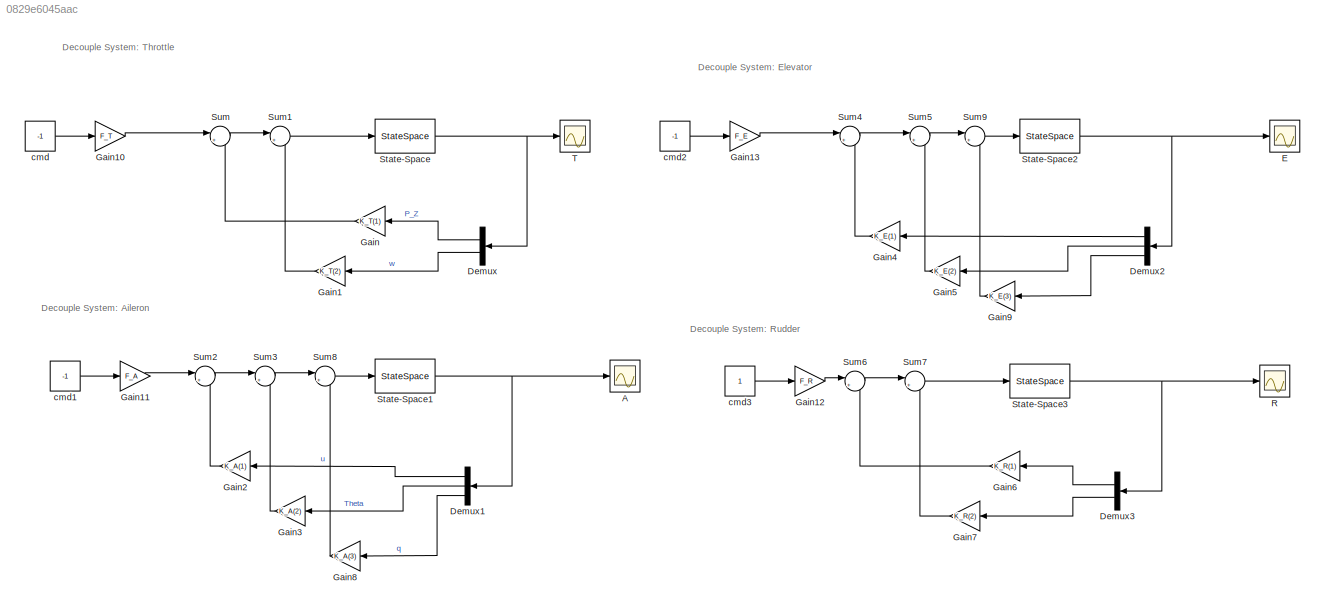
MODEL slx_0829e6045aac
KIND model
CONFIG AbsTol = auto
CONFIG EnableMultiTasking = off
CONFIG FixedStep = auto
CONFIG MaxStep = auto
CONFIG MinStep = auto
CONFIG RelTol = 1e-3
CONFIG SampleTimeConstraint = Unconstrained
CONFIG SolverName = VariableStepAuto
CONFIG StartTime = 0.0
CONFIG StopTime = 10
BLOCK [Scope] A
  Floating = off
  NumInputPorts = 1
  Ports = [1]
  ScopeSpecificationString = Simulink.scopes.TimeScopeBlockCfg('CurrentConfiguration', extmgr.ConfigurationSet(extmgr.Configuration('Core','General UI',true),extmgr.Configuration('Core','Source UI',true),extmgr.Configuration('Sources','WiredSimulink',true,'DataLoggingVariableName','ScopeData1'),extmgr.Configuration('Visuals','Time Domain',true,'SerializedDisplays',{struct('MinYLimReal','-1.15237','MaxYLimReal','0.37247','YLab...<+1461ch>
BLOCK [Demux] Demux
  NameLocation = top
  Outputs = 2
  Ports = [1, 2]
BLOCK [Demux] Demux1
  NameLocation = top
  Outputs = 3
  Ports = [1, 3]
BLOCK [Demux] Demux2
  NameLocation = top
  Outputs = 3
  Ports = [1, 3]
BLOCK [Demux] Demux3
  NameLocation = top
  Outputs = 2
  Ports = [1, 2]
BLOCK [Scope] E
  Floating = off
  NumInputPorts = 1
  Ports = [1]
  ScopeSpecificationString = Simulink.scopes.TimeScopeBlockCfg('CurrentConfiguration', extmgr.ConfigurationSet(extmgr.Configuration('Core','General UI',true),extmgr.Configuration('Core','Source UI',true),extmgr.Configuration('Sources','WiredSimulink',true,'DataLoggingVariableName','ScopeData2'),extmgr.Configuration('Visuals','Time Domain',true,'SerializedDisplays',{struct('MinYLimReal','-1.12488','MaxYLimReal','0.12499','YLab...<+1430ch>
BLOCK [Gain] Gain
  Gain = K_T(1)
  NameLocation = top
BLOCK [Gain] Gain1
  Gain = K_T(2)
  NameLocation = top
BLOCK [Gain] Gain10
  Gain = F_T
BLOCK [Gain] Gain11
  Gain = F_A
BLOCK [Gain] Gain12
  Gain = F_R
BLOCK [Gain] Gain13
  Gain = F_E
BLOCK [Gain] Gain2
  Gain = K_A(1)
  NameLocation = top
BLOCK [Gain] Gain3
  Gain = K_A(2)
  NameLocation = top
BLOCK [Gain] Gain4
  Gain = K_E(1)
  NameLocation = top
BLOCK [Gain] Gain5
  Gain = K_E(2)
  NameLocation = top
BLOCK [Gain] Gain6
  Gain = K_R(1)
  NameLocation = top
BLOCK [Gain] Gain7
  Gain = K_R(2)
  NameLocation = top
BLOCK [Gain] Gain8
  Gain = K_A(3)
  NameLocation = top
BLOCK [Gain] Gain9
  Gain = K_E(3)
  NameLocation = top
BLOCK [Scope] R
  Floating = off
  NumInputPorts = 1
  Ports = [1]
  ScopeSpecificationString = Simulink.scopes.TimeScopeBlockCfg('CurrentConfiguration', extmgr.ConfigurationSet(extmgr.Configuration('Core','General UI',true),extmgr.Configuration('Core','Source UI',true),extmgr.Configuration('Sources','WiredSimulink',true,'DataLoggingVariableName','ScopeData3'),extmgr.Configuration('Visuals','Time Domain',true,'SerializedDisplays',{struct('MinYLimReal','-0.13242','MaxYLimReal','1.19177','YLab...<+1446ch>
BLOCK [StateSpace] State-Space
  A = A_T
  B = B_T
  C = C_T
  D = D_T
  InitialCondition = [0,0]
  ParameterTunability = Unconstrained
  Ports = [1, 1]
BLOCK [StateSpace] State-Space1
  A = A_A
  B = B_A
  C = C_A
  D = D_A
  InitialCondition = [0,0,0]
  Ports = [1, 1]
BLOCK [StateSpace] State-Space2
  A = A_E
  B = B_E
  C = C_E
  D = D_E
  InitialCondition = [0,0,0]
  Ports = [1, 1]
BLOCK [StateSpace] State-Space3
  A = A_R
  B = B_R
  C = C_R
  D = D_R
  InitialCondition = [0,0]
  Ports = [1, 1]
BLOCK [Sum] Sum
  Inputs = |+-
  Ports = [2, 1]
BLOCK [Sum] Sum1
  Inputs = |+-
  Ports = [2, 1]
BLOCK [Sum] Sum2
  Inputs = |+-
  Ports = [2, 1]
BLOCK [Sum] Sum3
  Inputs = |+-
  Ports = [2, 1]
BLOCK [Sum] Sum4
  Inputs = |+-
  Ports = [2, 1]
BLOCK [Sum] Sum5
  Inputs = |+-
  Ports = [2, 1]
BLOCK [Sum] Sum6
  Inputs = |+-
  Ports = [2, 1]
BLOCK [Sum] Sum7
  Inputs = |+-
  Ports = [2, 1]
BLOCK [Sum] Sum8
  Inputs = |+-
  Ports = [2, 1]
BLOCK [Sum] Sum9
  Inputs = |+-
  Ports = [2, 1]
BLOCK [Scope] T
  Floating = off
  NumInputPorts = 1
  Ports = [1]
  ScopeSpecificationString = Simulink.scopes.TimeScopeBlockCfg('CurrentConfiguration', extmgr.ConfigurationSet(extmgr.Configuration('Core','General UI',true),extmgr.Configuration('Core','Source UI',true),extmgr.Configuration('Sources','WiredSimulink',true),extmgr.Configuration('Visuals','Time Domain',true,'SerializedDisplays',{struct('MinYLimReal','-1.2469','MaxYLimReal','0.13854','YLabelReal','','MinYLimMag','0.00000','MaxYL...<+1399ch>
BLOCK [Constant] cmd
  Value = -1
BLOCK [Constant] cmd1
  Value = -1
BLOCK [Constant] cmd2
  Value = -1
BLOCK [Constant] cmd3
ANNOTATION (root): Decouple System: Aileron
ANNOTATION (root): Decouple System: Elevator
ANNOTATION (root): Decouple System: Rudder
ANNOTATION (root): Decouple System: Throttle
LINE Demux1:1 -> Gain2:1
LINE Demux1:2 -> Gain3:1
LINE Demux1:3 -> Gain8:1
LINE Demux2:1 -> Gain4:1
LINE Demux2:2 -> Gain5:1
LINE Demux2:3 -> Gain9:1
LINE Demux3:1 -> Gain6:1
LINE Demux3:2 -> Gain7:1
LINE Demux:1 -> Gain:1
LINE Demux:2 -> Gain1:1
LINE Gain10:1 -> Sum:1
LINE Gain11:1 -> Sum2:1
LINE Gain12:1 -> Sum6:1
LINE Gain13:1 -> Sum4:1
LINE Gain1:1 -> Sum1:2
LINE Gain2:1 -> Sum2:2
LINE Gain3:1 -> Sum3:2
LINE Gain4:1 -> Sum4:2
LINE Gain5:1 -> Sum5:2
LINE Gain6:1 -> Sum6:2
LINE Gain7:1 -> Sum7:2
LINE Gain8:1 -> Sum8:2
LINE Gain9:1 -> Sum9:2
LINE Gain:1 -> Sum:2
NET State-Space1:1 -> A:1, Demux1:1
NET State-Space2:1 -> Demux2:1, E:1
NET State-Space3:1 -> Demux3:1, R:1
NET State-Space:1 -> Demux:1, T:1
LINE Sum1:1 -> State-Space:1
LINE Sum2:1 -> Sum3:1
LINE Sum3:1 -> Sum8:1
LINE Sum4:1 -> Sum5:1
LINE Sum5:1 -> Sum9:1
LINE Sum6:1 -> Sum7:1
LINE Sum7:1 -> State-Space3:1
LINE Sum8:1 -> State-Space1:1
LINE Sum9:1 -> State-Space2:1
LINE Sum:1 -> Sum1:1
LINE cmd1:1 -> Gain11:1
LINE cmd2:1 -> Gain13:1
LINE cmd3:1 -> Gain12:1
LINE cmd:1 -> Gain10:1
note: NET lines group one-source signal fan-out (src -> all destinations, sorted); 1:1 wires keep LINE
